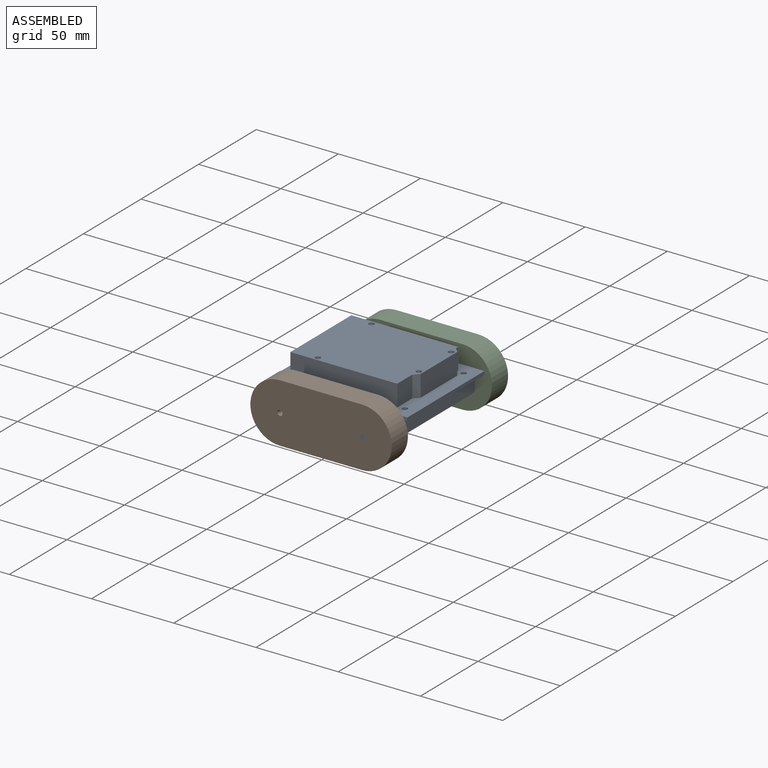
[diagram: assembled view]
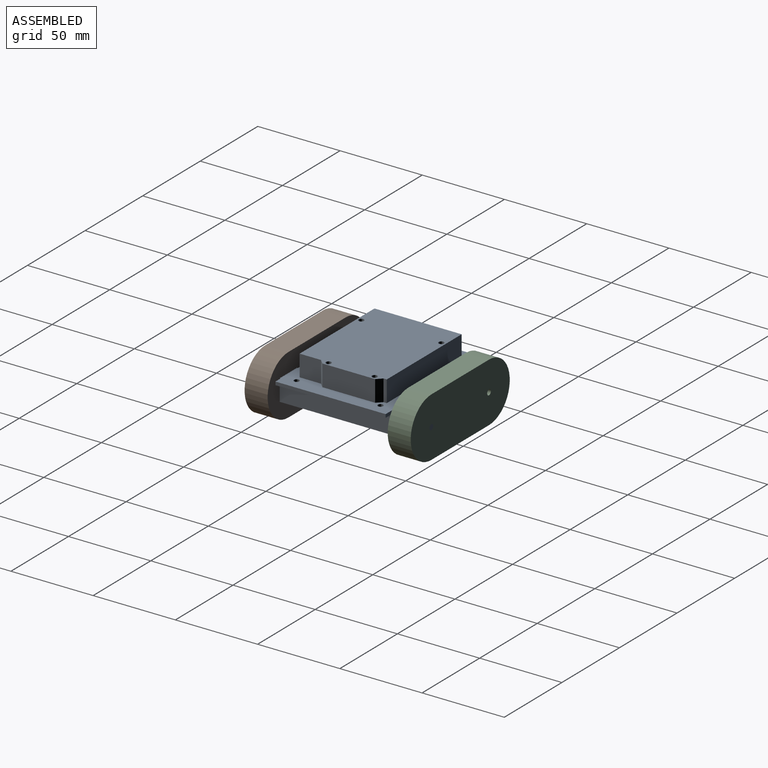
[diagram: assembled view, second angle]
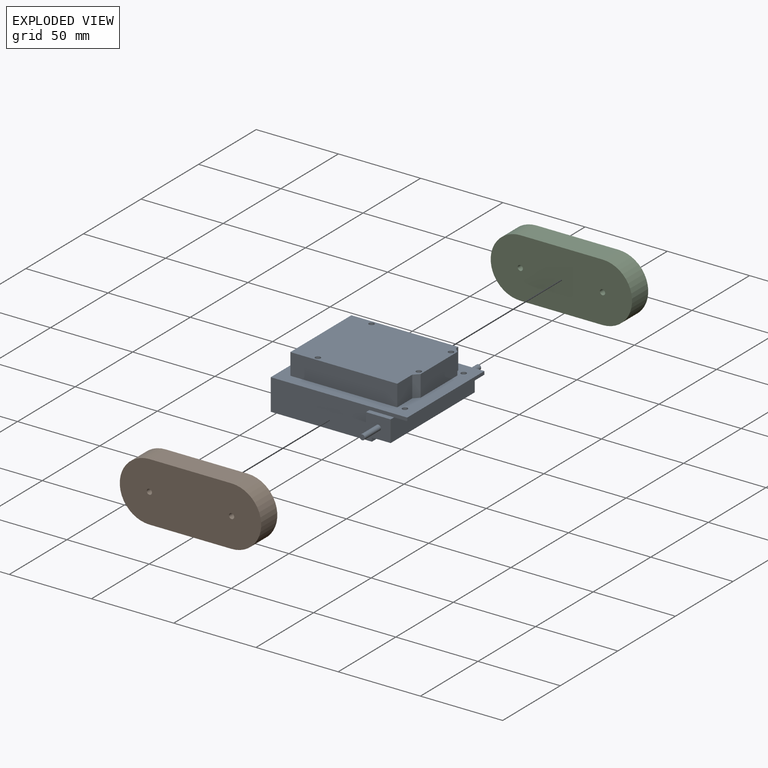
[diagram: exploded view]
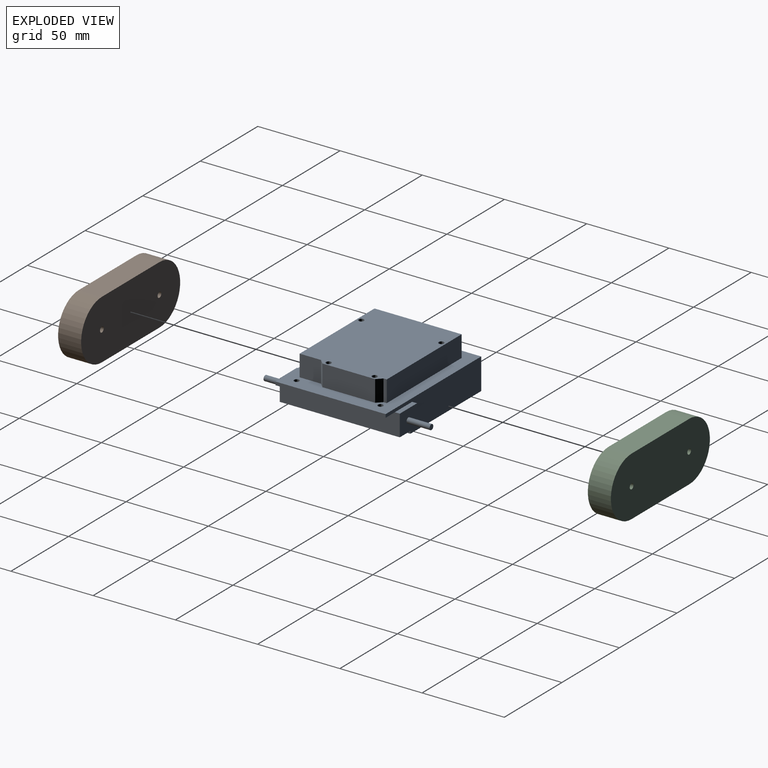
[diagram: exploded view, second angle]
ASSEMBLY  parts=3 mates=2
PART A: 41 faces, bbox 83x101x32 mm
  f0: plane 73x15mm, normal (0,0,-1), area 994.5mm2, adj f21,f24,f29,f30,f31,f32,f33,f35
  f1: plane 67x8mm, normal (0,0,-1), area 522mm2, adj f20,f21,f23,f24,f25,f31
  f2: plane 65x13mm, normal (0,1,0), area 845mm2, adj f3,f12,f14,f19
  f3: plane 53x13mm, normal (-1,0,0), area 689mm2, adj f2,f4,f14,f19
  f4: plane 65x13mm, normal (0,-1,0), area 845mm2, adj f3,f5,f14,f19
  f5: plane 13x13mm, normal (1,0,0), area 169mm2, adj f4,f6,f14,f19
  f6: plane 13x3mm, normal (0.71,-0.71,0), area 55.2mm2, adj f5,f7,f14,f19
  f7: plane 32x13mm, normal (1,0,0), area 416mm2, adj f6,f8,f14,f19
  f8: plane 13x3mm, normal (0.71,0.71,0), area 55.2mm2, adj f7,f12,f14,f19
  f9: cylinder r=1.6mm len=13mm, axis (0,0,-1), area 130.7mm2, adj f14,f16
  f10: cylinder r=1.6mm len=13mm, axis (0,0,-1), area 130.7mm2, adj f14,f17
  f11: cylinder r=1.6mm len=13mm, axis (0,0,-1), area 130.7mm2, adj f14,f18
  f12: plane 13x2mm, normal (1,0,0), area 26mm2, adj f2,f8,f14,f19
  f13: cylinder r=1.6mm len=13mm, axis (0,0,-1), area 130.7mm2, adj f14,f15
  f14: plane 68x53mm, normal (0,0,1), area 3517.8mm2, adj f2,f3,f4,f5,f6,f7,f8,f9
  f15: plane 3.2x3.2mm, normal (0,0,1), area 8mm2, adj f13
  f16: plane 3.2x3.2mm, normal (0,0,1), area 8mm2, adj f9
  f17: plane 3.2x3.2mm, normal (0,0,1), area 8mm2, adj f10
  f18: plane 3.2x3.2mm, normal (0,0,1), area 8mm2, adj f11
  f19: plane 83x67mm, normal (0,0,1), area 1994.9mm2, adj f2,f3,f4,f5,f6,f7,f8,f12
  f20: plane 67x2mm, normal (1,0,0), area 134mm2, adj f1,f19,f21,f24
  f21: plane 83x19mm, normal (0,-1,0), area 1192mm2, adj f0,f1,f19,f20,f22,f26,f33,f35
  f22: plane 67x19mm, normal (-1,0,0), area 1273mm2, adj f19,f21,f24,f36
  f23: cylinder r=1.6mm len=3.2mm, axis (0,0,1), area 20.1mm2, adj f1,f19,f28
  f24: plane 83x19mm, normal (0,1,0), area 1192mm2, adj f0,f1,f19,f20,f22,f27,f29,f35
  f25: cylinder r=1.6mm len=3.2mm, axis (0,0,1), area 20.1mm2, adj f1,f19,f34
  f26: plane 15x3mm, normal (0,0,1), area 45mm2, adj f21,f31,f32,f33
  f27: plane 15x3mm, normal (0,0,1), area 45mm2, adj f24,f29,f30,f31
  f28: plane 2.5x0.6mm, normal (0,0,1), area 1mm2, adj f23,f31
  f29: plane 13x3mm, normal (-1,0,0), area 39mm2, adj f0,f24,f27,f30
  f30: plane 15x13mm, normal (0,1,0), area 187mm2, adj f0,f27,f29,f31,f37
  f31: plane 73x13mm, normal (1,0,0), area 949mm2, adj f0,f1,f26,f27,f28,f30,f32,f34
  f32: plane 15x13mm, normal (0,-1,0), area 187mm2, adj f0,f26,f31,f33,f39
  f33: plane 13x3mm, normal (-1,0,0), area 39mm2, adj f0,f21,f26,f32
  f34: plane 2.5x0.6mm, normal (0,0,1), area 1mm2, adj f25,f31
  f35: plane 67x4mm, normal (1,0,0), area 268mm2, adj f0,f21,f24,f36
  f36: plane 67x61.5mm, normal (0,0,-1), area 4120.5mm2, adj f21,f22,f24,f35
  f37: cylinder r=1.6mm len=14mm, axis (0,-1,0), area 140.7mm2, adj f30,f38
  f38: plane 3.2x3.2mm, normal (0,1,0), area 8mm2, adj f37
  f39: cylinder r=1.6mm len=14mm, axis (0,1,0), area 140.7mm2, adj f32,f40
  f40: plane 3.2x3.2mm, normal (0,-1,0), area 8mm2, adj f39
PART B: 8 faces, bbox 86x14x36 mm
  f0: plane 50x14mm, normal (0,0,1), area 700mm2, adj f1,f5,f6,f7
  f1: cylinder r=18mm len=36mm, axis (0,1,0), area 791.7mm2, adj f0,f2,f6,f7
  f2: plane 50x14mm, normal (0,0,-1), area 700mm2, adj f1,f5,f6,f7
  f3: cylinder r=1.6mm len=14mm, axis (0,1,0), area 140.7mm2, adj f6,f7
  f4: cylinder r=1.6mm len=14mm, axis (0,1,0), area 140.7mm2, adj f6,f7
  f5: cylinder r=18mm len=36mm, axis (0,1,0), area 791.7mm2, adj f0,f2,f6,f7
  f6: plane 86x36mm, normal (0,-1,0), area 2801.8mm2, adj f0,f1,f2,f3,f4,f5
  f7: plane 86x36mm, normal (0,1,0), area 2801.8mm2, adj f0,f1,f2,f3,f4,f5
PART C: same geometry as B
PLACE A t=(-0.47,-1.61,0.56)mm fixed
PLACE B t=(1.03,41.79,-7.94)mm
PLACE C t=(1.03,128.79,-7.94)mm
MATE fastened A.f37 <-> C.f5  axis (0,1,0) through (26.03,34.89,-7.94)mm
MATE fastened B.f5 <-> A.f37  axis (0,1,0) through (26.03,-38.11,-7.94)mm
